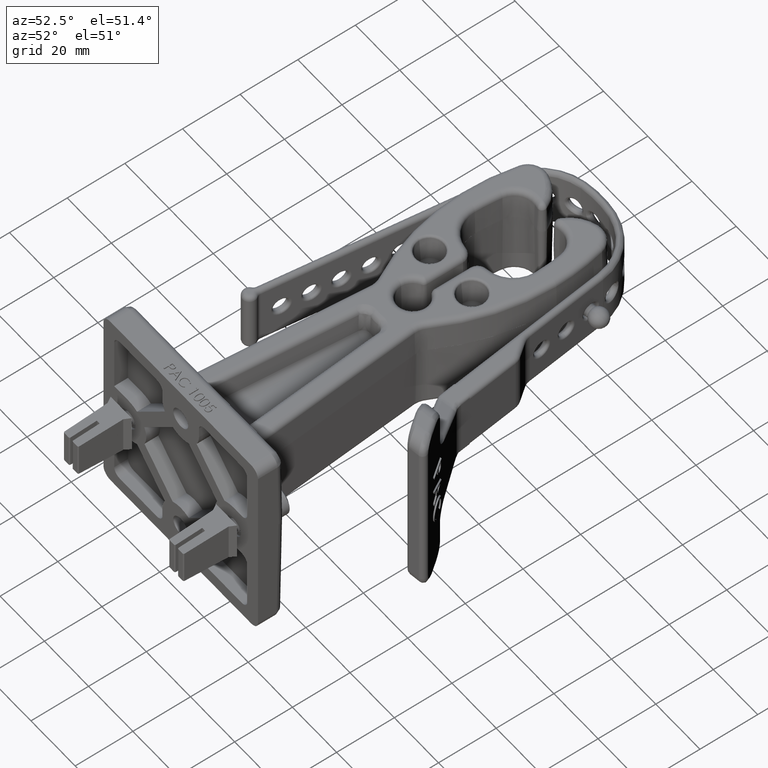
[diagram: clean part render]
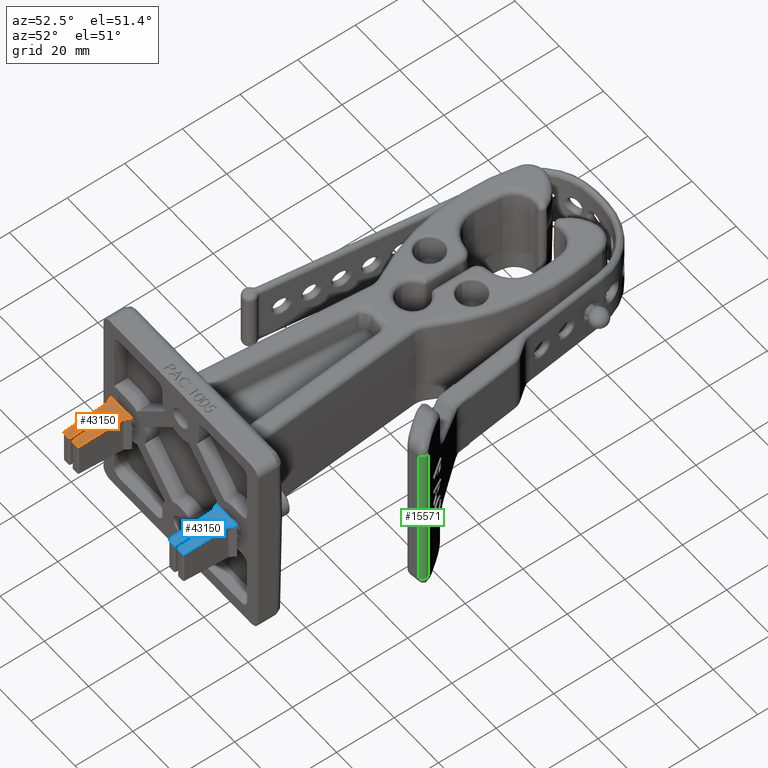
[diagram: same view with three faces highlighted in distinct colors, each labeled with its STEP entity id]
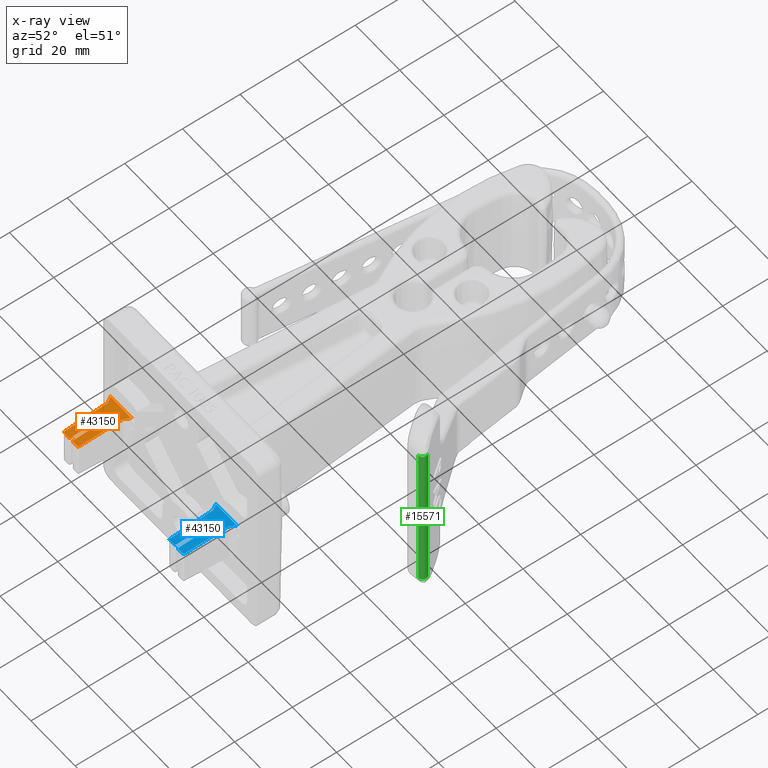
[diagram: x-ray of the same camera — body ghosted, the three highlighted faces saturated]
A machine part, auxiliary view with three faces highlighted in distinct colors.
The next image is the same camera in x-ray (body ghosted, the three faces saturated) — at least one of them is partly hidden behind the body in this view.
Their STEP definitions:

[orange] entity #43150 — the highlighted planar face has unit normal (0, 0.0508, -0.9987).
#53 = EDGE_LOOP ( 'NONE', ( #21292, #21293, #21294, #21295, #21296, #21297, #21298, #21299, #21300, #21301, #21302, #21303, #21304, #21305 ) ) ;
#2836 = CARTESIAN_POINT ( 'NONE',  ( -0.1874999999999999700, 0.0000000000000000000, 0.2700000000000000200 ) ) ;
#2839 = CARTESIAN_POINT ( 'NONE',  ( -0.1413119784648294900, -0.07999999999999996000, 0.2659272727272727300 ) ) ;
#2841 = CARTESIAN_POINT ( 'NONE',  ( -0.1302741081436127900, -0.6727792597013434500, 0.2357494195061134400 ) ) ;
#2843 = CARTESIAN_POINT ( 'NONE',  ( -0.1152767079015972900, -0.6874999999999998900, 0.2349999999999999900 ) ) ;
#2845 = CARTESIAN_POINT ( 'NONE',  ( -0.03999999999999998000, -0.6874999999999998900, 0.2349999999999999900 ) ) ;
#2847 = CARTESIAN_POINT ( 'NONE',  ( -0.02500000000000000500, -0.6725000000000001000, 0.2357636363636363400 ) ) ;
#2848 = CARTESIAN_POINT ( 'NONE',  ( -0.02500000000000000500, -0.3124999999999998900, 0.2540909090909090900 ) ) ;
#2850 = CARTESIAN_POINT ( 'NONE',  ( 0.02500000000000000500, -0.3124999999999998900, 0.2540909090909090900 ) ) ;
#2852 = CARTESIAN_POINT ( 'NONE',  ( 0.02500000000000000500, -0.6725000000000001000, 0.2357636363636363400 ) ) ;
#2854 = CARTESIAN_POINT ( 'NONE',  ( 0.03999999999999998000, -0.6874999999999998900, 0.2349999999999999900 ) ) ;
#2856 = CARTESIAN_POINT ( 'NONE',  ( 0.1152767079015972900, -0.6874999999999998900, 0.2349999999999999900 ) ) ;
#2858 = CARTESIAN_POINT ( 'NONE',  ( 0.1302741081436127900, -0.6727792597013434500, 0.2357494195061134400 ) ) ;
#2860 = CARTESIAN_POINT ( 'NONE',  ( 0.1413119784648294900, -0.07999999999999996000, 0.2659272727272727300 ) ) ;
#2862 = CARTESIAN_POINT ( 'NONE',  ( 0.1874999999999999700, 0.0000000000000000000, 0.2700000000000000200 ) ) ;
#7846 = LINE ( 'NONE', #9328, #7861 ) ;
#7857 = LINE ( 'NONE', #9330, #7858 ) ;
#7858 = VECTOR ( 'NONE', #9331, 39.37007874015748100 ) ;
#7861 = VECTOR ( 'NONE', #9335, 39.37007874015748900 ) ;
#7865 = LINE ( 'NONE', #9345, #7869 ) ;
#7869 = VECTOR ( 'NONE', #9351, 39.37007874015748100 ) ;
#7870 = LINE ( 'NONE', #9402, #7883 ) ;
#7875 = LINE ( 'NONE', #9378, #7876 ) ;
#7876 = VECTOR ( 'NONE', #9379, 39.37007874015748900 ) ;
#7881 = LINE ( 'NONE', #9384, #7882 ) ;
#7882 = VECTOR ( 'NONE', #9385, 39.37007874015748100 ) ;
#7883 = VECTOR ( 'NONE', #9403, 39.37007874015748900 ) ;
#7892 = LINE ( 'NONE', #9418, #7896 ) ;
#7896 = VECTOR ( 'NONE', #9424, 39.37007874015748100 ) ;
#7900 = LINE ( 'NONE', #9439, #7911 ) ;
#7901 = LINE ( 'NONE', #9434, #7905 ) ;
#7905 = VECTOR ( 'NONE', #9440, 39.37007874015748900 ) ;
#7911 = VECTOR ( 'NONE', #9446, 39.37007874015747400 ) ;
#7913 = LINE ( 'NONE', #9447, #7914 ) ;
#7914 = VECTOR ( 'NONE', #9448, 39.37007874015748100 ) ;
#8187 = FACE_OUTER_BOUND ( 'NONE', #53, .T. ) ;
#9328 = CARTESIAN_POINT ( 'NONE',  ( -0.1303064810193372000, -0.6710407024663097600, 0.2358379278744424100 ) ) ;
#9330 = CARTESIAN_POINT ( 'NONE',  ( -0.1414015846408003300, -0.07984479755054639500, 0.2659351739428813000 ) ) ;
#9331 = DIRECTION ( 'NONE',  ( -0.4995147568845803600, 0.8651849380544994700, 0.04404577866459275000 ) ) ;
#9335 = DIRECTION ( 'NONE',  ( -0.01859324297040299300, 0.9985340000105903400, 0.05083445818235737100 ) ) ;
#9336 = CARTESIAN_POINT ( 'NONE',  ( -0.1152767079015972900, -0.6874999999999998900, 0.2349999999999999900 ) ) ;
#9342 = CARTESIAN_POINT ( 'NONE',  ( -0.1239343355726643100, -0.6875000000000002200, 0.2349999999999999900 ) ) ;
#9343 = CARTESIAN_POINT ( 'NONE',  ( -0.1301129263757618300, -0.6814353868566328500, 0.2353087439418441700 ) ) ;
#9344 = CARTESIAN_POINT ( 'NONE',  ( -0.1302741081436127900, -0.6727792597013434500, 0.2357494195061134400 ) ) ;
#9345 = CARTESIAN_POINT ( 'NONE',  ( -0.9700000000000003100, -0.6874999999999998900, 0.2349999999999999900 ) ) ;
#9351 = DIRECTION ( 'NONE',  ( 1.000000000000000000, -0.0000000000000000000, -0.0000000000000000000 ) ) ;
#9352 = CARTESIAN_POINT ( 'NONE',  ( -0.02500000000000000500, -0.6725000000000001000, 0.2357636363636363400 ) ) ;
#9359 = CARTESIAN_POINT ( 'NONE',  ( -0.02499999999999999400, -0.6812867965644037200, 0.2353163085385394600 ) ) ;
#9360 = CARTESIAN_POINT ( 'NONE',  ( -0.03121320343559641800, -0.6875000000000001100, 0.2349999999999999900 ) ) ;
#9361 = CARTESIAN_POINT ( 'NONE',  ( -0.03999999999999998000, -0.6874999999999998900, 0.2349999999999999900 ) ) ;
#9378 = CARTESIAN_POINT ( 'NONE',  ( -0.02500000000000000500, -0.3116921763099932400, 0.2541320346605822100 ) ) ;
#9379 = DIRECTION ( 'NONE',  ( 2.368328772874250900E-017, -0.9987066457133336700, -0.05084324741813340400 ) ) ;
#9384 = CARTESIAN_POINT ( 'NONE',  ( 0.02500000000000000500, -0.3124999999999998900, 0.2540909090909090900 ) ) ;
#9385 = DIRECTION ( 'NONE',  ( -1.000000000000000000, 0.0000000000000000000, 0.0000000000000000000 ) ) ;
#9402 = CARTESIAN_POINT ( 'NONE',  ( 0.02500000000000000500, -0.6707615634191054200, 0.2358521385895728200 ) ) ;
#9403 = DIRECTION ( 'NONE',  ( 2.368328772874250900E-017, 0.9987066457133336700, 0.05084324741813340400 ) ) ;
#9409 = CARTESIAN_POINT ( 'NONE',  ( 0.03999999999999998000, -0.6874999999999998900, 0.2349999999999999900 ) ) ;
#9415 = CARTESIAN_POINT ( 'NONE',  ( 0.03121320343559641800, -0.6875000000000001100, 0.2349999999999999900 ) ) ;
#9416 = CARTESIAN_POINT ( 'NONE',  ( 0.02499999999999999400, -0.6812867965644037200, 0.2353163085385394600 ) ) ;
#9417 = CARTESIAN_POINT ( 'NONE',  ( 0.02500000000000000500, -0.6725000000000001000, 0.2357636363636363400 ) ) ;
#9418 = CARTESIAN_POINT ( 'NONE',  ( -0.9700000000000003100, -0.6874999999999998900, 0.2349999999999999900 ) ) ;
#9424 = DIRECTION ( 'NONE',  ( 1.000000000000000000, -0.0000000000000000000, -0.0000000000000000000 ) ) ;
#9425 = CARTESIAN_POINT ( 'NONE',  ( 0.1302741081436127900, -0.6727792597013434500, 0.2357494195061134400 ) ) ;
#9431 = CARTESIAN_POINT ( 'NONE',  ( 0.1301129263757618300, -0.6814353868566328500, 0.2353087439418441700 ) ) ;
#9432 = CARTESIAN_POINT ( 'NONE',  ( 0.1239343355726643100, -0.6875000000000002200, 0.2349999999999999900 ) ) ;
#9433 = CARTESIAN_POINT ( 'NONE',  ( 0.1152767079015972900, -0.6874999999999998900, 0.2349999999999999900 ) ) ;
#9434 = CARTESIAN_POINT ( 'NONE',  ( 0.1413158279147354600, -0.07979326862890455400, 0.2659377972334376300 ) ) ;
#9439 = CARTESIAN_POINT ( 'NONE',  ( 0.1874999999999999700, 0.0000000000000000000, 0.2700000000000000200 ) ) ;
#9440 = DIRECTION ( 'NONE',  ( -0.01859324297040310800, -0.9985340000105903400, -0.05083445818235737100 ) ) ;
#9446 = DIRECTION ( 'NONE',  ( -0.4995147568845798000, -0.8651849380545000300, -0.04404577866459277000 ) ) ;
#9447 = CARTESIAN_POINT ( 'NONE',  ( -0.1874999999999999700, 0.0000000000000000000, 0.2700000000000000200 ) ) ;
#9448 = DIRECTION ( 'NONE',  ( -1.000000000000000000, -0.0000000000000000000, -0.0000000000000000000 ) ) ;
#11533 =( BOUNDED_CURVE ( )  B_SPLINE_CURVE ( 3, ( #9336, #9342, #9343, #9344 ),
 .UNSPECIFIED., .F., .F. ) 
 B_SPLINE_CURVE_WITH_KNOTS ( ( 4, 4 ),
 ( 0.0000000000000000000, 1.552177937730564700 ),
 .UNSPECIFIED. ) 
 CURVE ( )  GEOMETRIC_REPRESENTATION_ITEM ( )  RATIONAL_B_SPLINE_CURVE ( ( 1.000000000000000000, 0.8091057610578329400, 0.8091057610578329400, 1.000000000000000000 ) ) 
 REPRESENTATION_ITEM ( '' )  );
#11535 =( BOUNDED_CURVE ( )  B_SPLINE_CURVE ( 3, ( #9352, #9359, #9360, #9361 ),
 .UNSPECIFIED., .F., .F. ) 
 B_SPLINE_CURVE_WITH_KNOTS ( ( 4, 4 ),
 ( 4.712388980384689700, 6.283185307179586200 ),
 .UNSPECIFIED. ) 
 CURVE ( )  GEOMETRIC_REPRESENTATION_ITEM ( )  RATIONAL_B_SPLINE_CURVE ( ( 1.000000000000000000, 0.8047378541243649400, 0.8047378541243649400, 1.000000000000000000 ) ) 
 REPRESENTATION_ITEM ( '' )  );
#11537 =( BOUNDED_CURVE ( )  B_SPLINE_CURVE ( 3, ( #9409, #9415, #9416, #9417 ),
 .UNSPECIFIED., .F., .F. ) 
 B_SPLINE_CURVE_WITH_KNOTS ( ( 4, 4 ),
 ( 0.0000000000000000000, 1.570796326794896600 ),
 .UNSPECIFIED. ) 
 CURVE ( )  GEOMETRIC_REPRESENTATION_ITEM ( )  RATIONAL_B_SPLINE_CURVE ( ( 1.000000000000000000, 0.8047378541243649400, 0.8047378541243649400, 1.000000000000000000 ) ) 
 REPRESENTATION_ITEM ( '' )  );
#11539 =( BOUNDED_CURVE ( )  B_SPLINE_CURVE ( 3, ( #9425, #9431, #9432, #9433 ),
 .UNSPECIFIED., .F., .F. ) 
 B_SPLINE_CURVE_WITH_KNOTS ( ( 4, 4 ),
 ( 4.731007369449021600, 6.283185307179586200 ),
 .UNSPECIFIED. ) 
 CURVE ( )  GEOMETRIC_REPRESENTATION_ITEM ( )  RATIONAL_B_SPLINE_CURVE ( ( 1.000000000000000000, 0.8091057610578329400, 0.8091057610578329400, 1.000000000000000000 ) ) 
 REPRESENTATION_ITEM ( '' )  );
#12303 = PLANE ( 'NONE',  #24418 ) ;
#12304 = CARTESIAN_POINT ( 'NONE',  ( -0.9700000000000003100, 0.0000000000000000000, 0.2700000000000000200 ) ) ;
#12309 = DIRECTION ( 'NONE',  ( 0.0000000000000000000, 0.05084324741813341800, -0.9987066457133339000 ) ) ;
#12310 = DIRECTION ( 'NONE',  ( 0.0000000000000000000, 0.9987066457133336700, 0.05084324741813340400 ) ) ;
#17378 = VERTEX_POINT ( 'NONE', #2836 ) ;
#17383 = VERTEX_POINT ( 'NONE', #2839 ) ;
#17387 = VERTEX_POINT ( 'NONE', #2841 ) ;
#17390 = VERTEX_POINT ( 'NONE', #2843 ) ;
#17394 = VERTEX_POINT ( 'NONE', #2845 ) ;
#17398 = VERTEX_POINT ( 'NONE', #2847 ) ;
#17399 = VERTEX_POINT ( 'NONE', #2848 ) ;
#17403 = VERTEX_POINT ( 'NONE', #2850 ) ;
#17407 = VERTEX_POINT ( 'NONE', #2852 ) ;
#17410 = VERTEX_POINT ( 'NONE', #2854 ) ;
#17414 = VERTEX_POINT ( 'NONE', #2856 ) ;
#17417 = VERTEX_POINT ( 'NONE', #2858 ) ;
#17421 = VERTEX_POINT ( 'NONE', #2860 ) ;
#17425 = VERTEX_POINT ( 'NONE', #2862 ) ;
#21292 = ORIENTED_EDGE ( 'NONE', *, *, #22652, .F. ) ;
#21293 = ORIENTED_EDGE ( 'NONE', *, *, #22655, .F. ) ;
#21294 = ORIENTED_EDGE ( 'NONE', *, *, #22658, .T. ) ;
#21295 = ORIENTED_EDGE ( 'NONE', *, *, #22661, .F. ) ;
#21296 = ORIENTED_EDGE ( 'NONE', *, *, #22664, .F. ) ;
#21297 = ORIENTED_EDGE ( 'NONE', *, *, #22667, .F. ) ;
#21298 = ORIENTED_EDGE ( 'NONE', *, *, #22670, .F. ) ;
#21299 = ORIENTED_EDGE ( 'NONE', *, *, #22675, .F. ) ;
#21300 = ORIENTED_EDGE ( 'NONE', *, *, #22678, .T. ) ;
#21301 = ORIENTED_EDGE ( 'NONE', *, *, #22681, .F. ) ;
#21302 = ORIENTED_EDGE ( 'NONE', *, *, #22684, .F. ) ;
#21303 = ORIENTED_EDGE ( 'NONE', *, *, #22687, .F. ) ;
#21304 = ORIENTED_EDGE ( 'NONE', *, *, #22688, .T. ) ;
#21305 = ORIENTED_EDGE ( 'NONE', *, *, #22650, .F. ) ;
#22650 = EDGE_CURVE ( 'NONE', #17383, #17378, #7857, .T. ) ;
#22652 = EDGE_CURVE ( 'NONE', #17387, #17383, #7846, .T. ) ;
#22655 = EDGE_CURVE ( 'NONE', #17390, #17387, #11533, .T. ) ;
#22658 = EDGE_CURVE ( 'NONE', #17390, #17394, #7865, .T. ) ;
#22661 = EDGE_CURVE ( 'NONE', #17398, #17394, #11535, .T. ) ;
#22664 = EDGE_CURVE ( 'NONE', #17399, #17398, #7875, .T. ) ;
#22667 = EDGE_CURVE ( 'NONE', #17403, #17399, #7881, .T. ) ;
#22670 = EDGE_CURVE ( 'NONE', #17407, #17403, #7870, .T. ) ;
#22675 = EDGE_CURVE ( 'NONE', #17410, #17407, #11537, .T. ) ;
#22678 = EDGE_CURVE ( 'NONE', #17410, #17414, #7892, .T. ) ;
#22681 = EDGE_CURVE ( 'NONE', #17417, #17414, #11539, .T. ) ;
#22684 = EDGE_CURVE ( 'NONE', #17421, #17417, #7901, .T. ) ;
#22687 = EDGE_CURVE ( 'NONE', #17425, #17421, #7900, .T. ) ;
#22688 = EDGE_CURVE ( 'NONE', #17425, #17378, #7913, .T. ) ;
#24418 = AXIS2_PLACEMENT_3D ( 'NONE', #12304, #12309, #12310 ) ;
#43150 = ADVANCED_FACE ( 'NONE', ( #8187 ), #12303, .F. ) ;

[blue] entity #43150 — the highlighted planar face has unit normal (0, 0.0508, -0.9987).
#53 = EDGE_LOOP ( 'NONE', ( #21292, #21293, #21294, #21295, #21296, #21297, #21298, #21299, #21300, #21301, #21302, #21303, #21304, #21305 ) ) ;
#2836 = CARTESIAN_POINT ( 'NONE',  ( -0.1874999999999999700, 0.0000000000000000000, 0.2700000000000000200 ) ) ;
#2839 = CARTESIAN_POINT ( 'NONE',  ( -0.1413119784648294900, -0.07999999999999996000, 0.2659272727272727300 ) ) ;
#2841 = CARTESIAN_POINT ( 'NONE',  ( -0.1302741081436127900, -0.6727792597013434500, 0.2357494195061134400 ) ) ;
#2843 = CARTESIAN_POINT ( 'NONE',  ( -0.1152767079015972900, -0.6874999999999998900, 0.2349999999999999900 ) ) ;
#2845 = CARTESIAN_POINT ( 'NONE',  ( -0.03999999999999998000, -0.6874999999999998900, 0.2349999999999999900 ) ) ;
#2847 = CARTESIAN_POINT ( 'NONE',  ( -0.02500000000000000500, -0.6725000000000001000, 0.2357636363636363400 ) ) ;
#2848 = CARTESIAN_POINT ( 'NONE',  ( -0.02500000000000000500, -0.3124999999999998900, 0.2540909090909090900 ) ) ;
#2850 = CARTESIAN_POINT ( 'NONE',  ( 0.02500000000000000500, -0.3124999999999998900, 0.2540909090909090900 ) ) ;
#2852 = CARTESIAN_POINT ( 'NONE',  ( 0.02500000000000000500, -0.6725000000000001000, 0.2357636363636363400 ) ) ;
#2854 = CARTESIAN_POINT ( 'NONE',  ( 0.03999999999999998000, -0.6874999999999998900, 0.2349999999999999900 ) ) ;
#2856 = CARTESIAN_POINT ( 'NONE',  ( 0.1152767079015972900, -0.6874999999999998900, 0.2349999999999999900 ) ) ;
#2858 = CARTESIAN_POINT ( 'NONE',  ( 0.1302741081436127900, -0.6727792597013434500, 0.2357494195061134400 ) ) ;
#2860 = CARTESIAN_POINT ( 'NONE',  ( 0.1413119784648294900, -0.07999999999999996000, 0.2659272727272727300 ) ) ;
#2862 = CARTESIAN_POINT ( 'NONE',  ( 0.1874999999999999700, 0.0000000000000000000, 0.2700000000000000200 ) ) ;
#7846 = LINE ( 'NONE', #9328, #7861 ) ;
#7857 = LINE ( 'NONE', #9330, #7858 ) ;
#7858 = VECTOR ( 'NONE', #9331, 39.37007874015748100 ) ;
#7861 = VECTOR ( 'NONE', #9335, 39.37007874015748900 ) ;
#7865 = LINE ( 'NONE', #9345, #7869 ) ;
#7869 = VECTOR ( 'NONE', #9351, 39.37007874015748100 ) ;
#7870 = LINE ( 'NONE', #9402, #7883 ) ;
#7875 = LINE ( 'NONE', #9378, #7876 ) ;
#7876 = VECTOR ( 'NONE', #9379, 39.37007874015748900 ) ;
#7881 = LINE ( 'NONE', #9384, #7882 ) ;
#7882 = VECTOR ( 'NONE', #9385, 39.37007874015748100 ) ;
#7883 = VECTOR ( 'NONE', #9403, 39.37007874015748900 ) ;
#7892 = LINE ( 'NONE', #9418, #7896 ) ;
#7896 = VECTOR ( 'NONE', #9424, 39.37007874015748100 ) ;
#7900 = LINE ( 'NONE', #9439, #7911 ) ;
#7901 = LINE ( 'NONE', #9434, #7905 ) ;
#7905 = VECTOR ( 'NONE', #9440, 39.37007874015748900 ) ;
#7911 = VECTOR ( 'NONE', #9446, 39.37007874015747400 ) ;
#7913 = LINE ( 'NONE', #9447, #7914 ) ;
#7914 = VECTOR ( 'NONE', #9448, 39.37007874015748100 ) ;
#8187 = FACE_OUTER_BOUND ( 'NONE', #53, .T. ) ;
#9328 = CARTESIAN_POINT ( 'NONE',  ( -0.1303064810193372000, -0.6710407024663097600, 0.2358379278744424100 ) ) ;
#9330 = CARTESIAN_POINT ( 'NONE',  ( -0.1414015846408003300, -0.07984479755054639500, 0.2659351739428813000 ) ) ;
#9331 = DIRECTION ( 'NONE',  ( -0.4995147568845803600, 0.8651849380544994700, 0.04404577866459275000 ) ) ;
#9335 = DIRECTION ( 'NONE',  ( -0.01859324297040299300, 0.9985340000105903400, 0.05083445818235737100 ) ) ;
#9336 = CARTESIAN_POINT ( 'NONE',  ( -0.1152767079015972900, -0.6874999999999998900, 0.2349999999999999900 ) ) ;
#9342 = CARTESIAN_POINT ( 'NONE',  ( -0.1239343355726643100, -0.6875000000000002200, 0.2349999999999999900 ) ) ;
#9343 = CARTESIAN_POINT ( 'NONE',  ( -0.1301129263757618300, -0.6814353868566328500, 0.2353087439418441700 ) ) ;
#9344 = CARTESIAN_POINT ( 'NONE',  ( -0.1302741081436127900, -0.6727792597013434500, 0.2357494195061134400 ) ) ;
#9345 = CARTESIAN_POINT ( 'NONE',  ( -0.9700000000000003100, -0.6874999999999998900, 0.2349999999999999900 ) ) ;
#9351 = DIRECTION ( 'NONE',  ( 1.000000000000000000, -0.0000000000000000000, -0.0000000000000000000 ) ) ;
#9352 = CARTESIAN_POINT ( 'NONE',  ( -0.02500000000000000500, -0.6725000000000001000, 0.2357636363636363400 ) ) ;
#9359 = CARTESIAN_POINT ( 'NONE',  ( -0.02499999999999999400, -0.6812867965644037200, 0.2353163085385394600 ) ) ;
#9360 = CARTESIAN_POINT ( 'NONE',  ( -0.03121320343559641800, -0.6875000000000001100, 0.2349999999999999900 ) ) ;
#9361 = CARTESIAN_POINT ( 'NONE',  ( -0.03999999999999998000, -0.6874999999999998900, 0.2349999999999999900 ) ) ;
#9378 = CARTESIAN_POINT ( 'NONE',  ( -0.02500000000000000500, -0.3116921763099932400, 0.2541320346605822100 ) ) ;
#9379 = DIRECTION ( 'NONE',  ( 2.368328772874250900E-017, -0.9987066457133336700, -0.05084324741813340400 ) ) ;
#9384 = CARTESIAN_POINT ( 'NONE',  ( 0.02500000000000000500, -0.3124999999999998900, 0.2540909090909090900 ) ) ;
#9385 = DIRECTION ( 'NONE',  ( -1.000000000000000000, 0.0000000000000000000, 0.0000000000000000000 ) ) ;
#9402 = CARTESIAN_POINT ( 'NONE',  ( 0.02500000000000000500, -0.6707615634191054200, 0.2358521385895728200 ) ) ;
#9403 = DIRECTION ( 'NONE',  ( 2.368328772874250900E-017, 0.9987066457133336700, 0.05084324741813340400 ) ) ;
#9409 = CARTESIAN_POINT ( 'NONE',  ( 0.03999999999999998000, -0.6874999999999998900, 0.2349999999999999900 ) ) ;
#9415 = CARTESIAN_POINT ( 'NONE',  ( 0.03121320343559641800, -0.6875000000000001100, 0.2349999999999999900 ) ) ;
#9416 = CARTESIAN_POINT ( 'NONE',  ( 0.02499999999999999400, -0.6812867965644037200, 0.2353163085385394600 ) ) ;
#9417 = CARTESIAN_POINT ( 'NONE',  ( 0.02500000000000000500, -0.6725000000000001000, 0.2357636363636363400 ) ) ;
#9418 = CARTESIAN_POINT ( 'NONE',  ( -0.9700000000000003100, -0.6874999999999998900, 0.2349999999999999900 ) ) ;
#9424 = DIRECTION ( 'NONE',  ( 1.000000000000000000, -0.0000000000000000000, -0.0000000000000000000 ) ) ;
#9425 = CARTESIAN_POINT ( 'NONE',  ( 0.1302741081436127900, -0.6727792597013434500, 0.2357494195061134400 ) ) ;
#9431 = CARTESIAN_POINT ( 'NONE',  ( 0.1301129263757618300, -0.6814353868566328500, 0.2353087439418441700 ) ) ;
#9432 = CARTESIAN_POINT ( 'NONE',  ( 0.1239343355726643100, -0.6875000000000002200, 0.2349999999999999900 ) ) ;
#9433 = CARTESIAN_POINT ( 'NONE',  ( 0.1152767079015972900, -0.6874999999999998900, 0.2349999999999999900 ) ) ;
#9434 = CARTESIAN_POINT ( 'NONE',  ( 0.1413158279147354600, -0.07979326862890455400, 0.2659377972334376300 ) ) ;
#9439 = CARTESIAN_POINT ( 'NONE',  ( 0.1874999999999999700, 0.0000000000000000000, 0.2700000000000000200 ) ) ;
#9440 = DIRECTION ( 'NONE',  ( -0.01859324297040310800, -0.9985340000105903400, -0.05083445818235737100 ) ) ;
#9446 = DIRECTION ( 'NONE',  ( -0.4995147568845798000, -0.8651849380545000300, -0.04404577866459277000 ) ) ;
#9447 = CARTESIAN_POINT ( 'NONE',  ( -0.1874999999999999700, 0.0000000000000000000, 0.2700000000000000200 ) ) ;
#9448 = DIRECTION ( 'NONE',  ( -1.000000000000000000, -0.0000000000000000000, -0.0000000000000000000 ) ) ;
#11533 =( BOUNDED_CURVE ( )  B_SPLINE_CURVE ( 3, ( #9336, #9342, #9343, #9344 ),
 .UNSPECIFIED., .F., .F. ) 
 B_SPLINE_CURVE_WITH_KNOTS ( ( 4, 4 ),
 ( 0.0000000000000000000, 1.552177937730564700 ),
 .UNSPECIFIED. ) 
 CURVE ( )  GEOMETRIC_REPRESENTATION_ITEM ( )  RATIONAL_B_SPLINE_CURVE ( ( 1.000000000000000000, 0.8091057610578329400, 0.8091057610578329400, 1.000000000000000000 ) ) 
 REPRESENTATION_ITEM ( '' )  );
#11535 =( BOUNDED_CURVE ( )  B_SPLINE_CURVE ( 3, ( #9352, #9359, #9360, #9361 ),
 .UNSPECIFIED., .F., .F. ) 
 B_SPLINE_CURVE_WITH_KNOTS ( ( 4, 4 ),
 ( 4.712388980384689700, 6.283185307179586200 ),
 .UNSPECIFIED. ) 
 CURVE ( )  GEOMETRIC_REPRESENTATION_ITEM ( )  RATIONAL_B_SPLINE_CURVE ( ( 1.000000000000000000, 0.8047378541243649400, 0.8047378541243649400, 1.000000000000000000 ) ) 
 REPRESENTATION_ITEM ( '' )  );
#11537 =( BOUNDED_CURVE ( )  B_SPLINE_CURVE ( 3, ( #9409, #9415, #9416, #9417 ),
 .UNSPECIFIED., .F., .F. ) 
 B_SPLINE_CURVE_WITH_KNOTS ( ( 4, 4 ),
 ( 0.0000000000000000000, 1.570796326794896600 ),
 .UNSPECIFIED. ) 
 CURVE ( )  GEOMETRIC_REPRESENTATION_ITEM ( )  RATIONAL_B_SPLINE_CURVE ( ( 1.000000000000000000, 0.8047378541243649400, 0.8047378541243649400, 1.000000000000000000 ) ) 
 REPRESENTATION_ITEM ( '' )  );
#11539 =( BOUNDED_CURVE ( )  B_SPLINE_CURVE ( 3, ( #9425, #9431, #9432, #9433 ),
 .UNSPECIFIED., .F., .F. ) 
 B_SPLINE_CURVE_WITH_KNOTS ( ( 4, 4 ),
 ( 4.731007369449021600, 6.283185307179586200 ),
 .UNSPECIFIED. ) 
 CURVE ( )  GEOMETRIC_REPRESENTATION_ITEM ( )  RATIONAL_B_SPLINE_CURVE ( ( 1.000000000000000000, 0.8091057610578329400, 0.8091057610578329400, 1.000000000000000000 ) ) 
 REPRESENTATION_ITEM ( '' )  );
#12303 = PLANE ( 'NONE',  #24418 ) ;
#12304 = CARTESIAN_POINT ( 'NONE',  ( -0.9700000000000003100, 0.0000000000000000000, 0.2700000000000000200 ) ) ;
#12309 = DIRECTION ( 'NONE',  ( 0.0000000000000000000, 0.05084324741813341800, -0.9987066457133339000 ) ) ;
#12310 = DIRECTION ( 'NONE',  ( 0.0000000000000000000, 0.9987066457133336700, 0.05084324741813340400 ) ) ;
#17378 = VERTEX_POINT ( 'NONE', #2836 ) ;
#17383 = VERTEX_POINT ( 'NONE', #2839 ) ;
#17387 = VERTEX_POINT ( 'NONE', #2841 ) ;
#17390 = VERTEX_POINT ( 'NONE', #2843 ) ;
#17394 = VERTEX_POINT ( 'NONE', #2845 ) ;
#17398 = VERTEX_POINT ( 'NONE', #2847 ) ;
#17399 = VERTEX_POINT ( 'NONE', #2848 ) ;
#17403 = VERTEX_POINT ( 'NONE', #2850 ) ;
#17407 = VERTEX_POINT ( 'NONE', #2852 ) ;
#17410 = VERTEX_POINT ( 'NONE', #2854 ) ;
#17414 = VERTEX_POINT ( 'NONE', #2856 ) ;
#17417 = VERTEX_POINT ( 'NONE', #2858 ) ;
#17421 = VERTEX_POINT ( 'NONE', #2860 ) ;
#17425 = VERTEX_POINT ( 'NONE', #2862 ) ;
#21292 = ORIENTED_EDGE ( 'NONE', *, *, #22652, .F. ) ;
#21293 = ORIENTED_EDGE ( 'NONE', *, *, #22655, .F. ) ;
#21294 = ORIENTED_EDGE ( 'NONE', *, *, #22658, .T. ) ;
#21295 = ORIENTED_EDGE ( 'NONE', *, *, #22661, .F. ) ;
#21296 = ORIENTED_EDGE ( 'NONE', *, *, #22664, .F. ) ;
#21297 = ORIENTED_EDGE ( 'NONE', *, *, #22667, .F. ) ;
#21298 = ORIENTED_EDGE ( 'NONE', *, *, #22670, .F. ) ;
#21299 = ORIENTED_EDGE ( 'NONE', *, *, #22675, .F. ) ;
#21300 = ORIENTED_EDGE ( 'NONE', *, *, #22678, .T. ) ;
#21301 = ORIENTED_EDGE ( 'NONE', *, *, #22681, .F. ) ;
#21302 = ORIENTED_EDGE ( 'NONE', *, *, #22684, .F. ) ;
#21303 = ORIENTED_EDGE ( 'NONE', *, *, #22687, .F. ) ;
#21304 = ORIENTED_EDGE ( 'NONE', *, *, #22688, .T. ) ;
#21305 = ORIENTED_EDGE ( 'NONE', *, *, #22650, .F. ) ;
#22650 = EDGE_CURVE ( 'NONE', #17383, #17378, #7857, .T. ) ;
#22652 = EDGE_CURVE ( 'NONE', #17387, #17383, #7846, .T. ) ;
#22655 = EDGE_CURVE ( 'NONE', #17390, #17387, #11533, .T. ) ;
#22658 = EDGE_CURVE ( 'NONE', #17390, #17394, #7865, .T. ) ;
#22661 = EDGE_CURVE ( 'NONE', #17398, #17394, #11535, .T. ) ;
#22664 = EDGE_CURVE ( 'NONE', #17399, #17398, #7875, .T. ) ;
#22667 = EDGE_CURVE ( 'NONE', #17403, #17399, #7881, .T. ) ;
#22670 = EDGE_CURVE ( 'NONE', #17407, #17403, #7870, .T. ) ;
#22675 = EDGE_CURVE ( 'NONE', #17410, #17407, #11537, .T. ) ;
#22678 = EDGE_CURVE ( 'NONE', #17410, #17414, #7892, .T. ) ;
#22681 = EDGE_CURVE ( 'NONE', #17417, #17414, #11539, .T. ) ;
#22684 = EDGE_CURVE ( 'NONE', #17421, #17417, #7901, .T. ) ;
#22687 = EDGE_CURVE ( 'NONE', #17425, #17421, #7900, .T. ) ;
#22688 = EDGE_CURVE ( 'NONE', #17425, #17378, #7913, .T. ) ;
#24418 = AXIS2_PLACEMENT_3D ( 'NONE', #12304, #12309, #12310 ) ;
#43150 = ADVANCED_FACE ( 'NONE', ( #8187 ), #12303, .F. ) ;

[green] entity #15571 — the highlighted cylindrical surface (edge-blend (fillet) strip) has radius 1.5875 mm, axis along (0, 0, 1).
#2278 = CARTESIAN_POINT ( 'NONE',  ( 2.097215350170362300, 1.270740999627284900, 1.062500000000000000 ) ) ;
#2279 = CARTESIAN_POINT ( 'NONE',  ( 2.097215350170362300, 1.270740999627284900, -1.062500000000000000 ) ) ;
#2336 = CARTESIAN_POINT ( 'NONE',  ( 2.055357954108551600, 1.170907596425126300, 1.062500000000000000 ) ) ;
#2339 = CARTESIAN_POINT ( 'NONE',  ( 2.055357954108551600, 1.170907596425126300, -1.062500000000000000 ) ) ;
#15571 = ADVANCED_FACE ( 'NONE', ( #24815 ), #24817, .T. ) ;
#16300 = VERTEX_POINT ( 'NONE', #2278 ) ;
#16302 = VERTEX_POINT ( 'NONE', #2279 ) ;
#16410 = VERTEX_POINT ( 'NONE', #2336 ) ;
#16416 = VERTEX_POINT ( 'NONE', #2339 ) ;
#19588 = ORIENTED_EDGE ( 'NONE', *, *, #49837, .T. ) ;
#19589 = ORIENTED_EDGE ( 'NONE', *, *, #49758, .F. ) ;
#19590 = ORIENTED_EDGE ( 'NONE', *, *, #49838, .F. ) ;
#19591 = ORIENTED_EDGE ( 'NONE', *, *, #49683, .F. ) ;
#23847 = AXIS2_PLACEMENT_3D ( 'NONE', #26732, #26688, #26691 ) ;
#24815 = FACE_OUTER_BOUND ( 'NONE', #48842, .T. ) ;
#24817 = CYLINDRICAL_SURFACE ( 'NONE', #23847, 0.06249999999999997200 ) ;
#26688 = DIRECTION ( 'NONE',  ( 2.921691771010749700E-017, 3.071630540210249100E-018, 1.000000000000000000 ) ) ;
#26691 = DIRECTION ( 'NONE',  ( 0.1262515692085746900, -0.9919982566881721000, 0.0000000000000000000 ) ) ;
#26732 = CARTESIAN_POINT ( 'NONE',  ( 2.047467231033016000, 1.232907487468137600, -1.250000000000000000 ) ) ;
#30375 = AXIS2_PLACEMENT_3D ( 'NONE', #38963, #38964, #38965 ) ;
#30376 = AXIS2_PLACEMENT_3D ( 'NONE', #38966, #38967, #38968 ) ;
#36838 = LINE ( 'NONE', #38203, #36843 ) ;
#36843 = VECTOR ( 'NONE', #38204, 39.37007874015748100 ) ;
#36938 = LINE ( 'NONE', #38407, #36939 ) ;
#36939 = VECTOR ( 'NONE', #38408, 39.37007874015748100 ) ;
#37008 = CIRCLE ( 'NONE', #30375, 0.06249999999999997200 ) ;
#37009 = CIRCLE ( 'NONE', #30376, 0.06249999999999997200 ) ;
#38203 = CARTESIAN_POINT ( 'NONE',  ( 2.097215350170362800, 1.270740999627284900, -1.250000000000000000 ) ) ;
#38204 = DIRECTION ( 'NONE',  ( -2.921691771010749700E-017, -3.071630540210249100E-018, -1.000000000000000000 ) ) ;
#38407 = CARTESIAN_POINT ( 'NONE',  ( 2.055357954108551600, 1.170907596425126300, -1.250000000000000000 ) ) ;
#38408 = DIRECTION ( 'NONE',  ( 2.921691771010749700E-017, 3.071630540210249100E-018, 1.000000000000000000 ) ) ;
#38963 = CARTESIAN_POINT ( 'NONE',  ( 2.047467231033015500, 1.232907487468136500, 1.062500000000000000 ) ) ;
#38964 = DIRECTION ( 'NONE',  ( -2.921691771010749700E-017, -3.071630540210249100E-018, -1.000000000000000000 ) ) ;
#38965 = DIRECTION ( 'NONE',  ( -0.1262515692085746900, 0.9919982566881721000, 0.0000000000000000000 ) ) ;
#38966 = CARTESIAN_POINT ( 'NONE',  ( 2.047467231033016000, 1.232907487468137600, -1.062500000000000000 ) ) ;
#38967 = DIRECTION ( 'NONE',  ( -2.921691771010749700E-017, -3.071630540210249100E-018, -1.000000000000000000 ) ) ;
#38968 = DIRECTION ( 'NONE',  ( -0.1262515692085746900, 0.9919982566881721000, 0.0000000000000000000 ) ) ;
#48842 = EDGE_LOOP ( 'NONE', ( #19588, #19589, #19590, #19591 ) ) ;
#49683 = EDGE_CURVE ( 'NONE', #16300, #16302, #36838, .T. ) ;
#49758 = EDGE_CURVE ( 'NONE', #16416, #16410, #36938, .T. ) ;
#49837 = EDGE_CURVE ( 'NONE', #16300, #16410, #37008, .T. ) ;
#49838 = EDGE_CURVE ( 'NONE', #16302, #16416, #37009, .T. ) ;